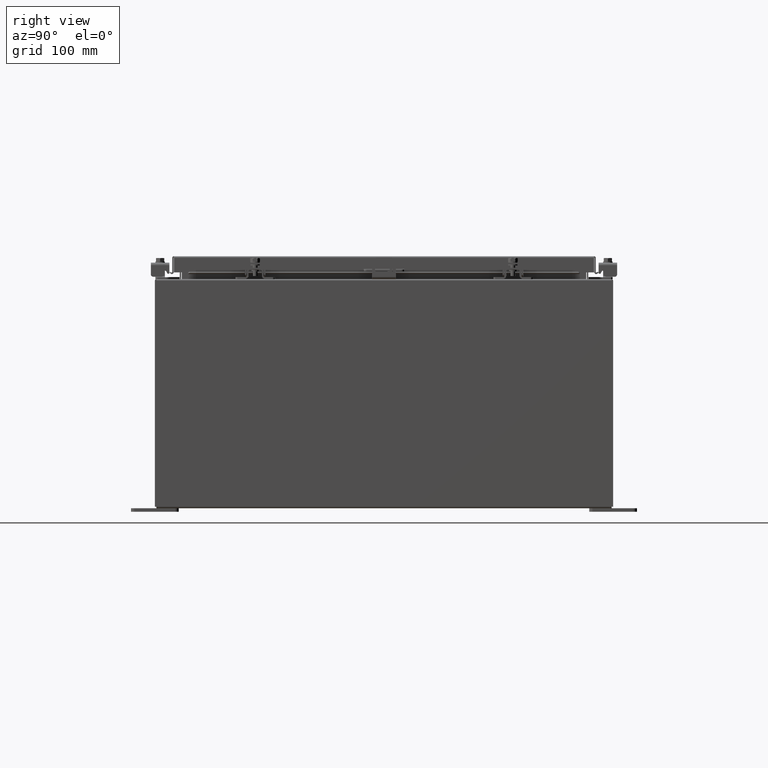
[diagram: clean part render]
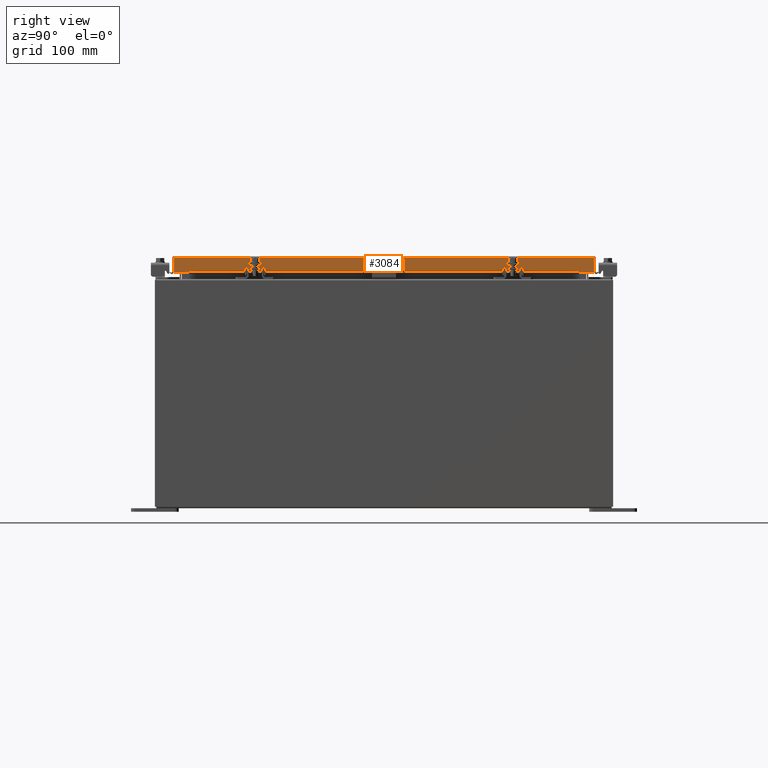
[diagram: same view with one face highlighted and labeled with its STEP entity id]
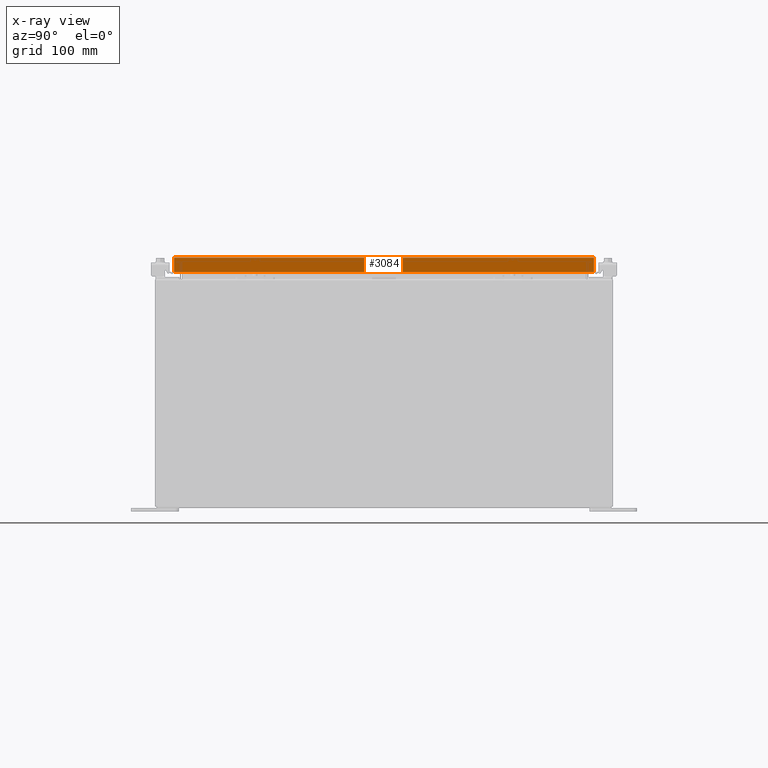
[diagram: x-ray of the same camera — body ghosted, the highlighted face saturated]
A machine part, right view. The second image highlights one B-rep face of the part: STEP entity #3084.
The next image is the same camera in x-ray: the body ghosted, the highlighted face saturated — about 0% of this face is hidden behind the body in this view.
In plain terms, the highlighted planar face has unit normal (1, 0, 0).
Its self-contained STEP definition (entity closure, byte-faithful):
#51 = CARTESIAN_POINT ( 'NONE',  ( 11.07799999999999600, -11.00515786437626900, -0.07469999999999978000 ) ) ;
#1166 = DIRECTION ( 'NONE',  ( 0.0000000000000000000, -1.000000000000000000, 0.0000000000000000000 ) ) ;
#1330 = LINE ( 'NONE', #16166, #27173 ) ;
#1842 = CARTESIAN_POINT ( 'NONE',  ( 11.07799999999999400, 10.25515786437627200, -0.8500000000000010900 ) ) ;
#2362 = VERTEX_POINT ( 'NONE', #3833 ) ;
#2715 = VECTOR ( 'NONE', #11217, 39.37007874015748100 ) ;
#3084 = ADVANCED_FACE ( 'NONE', ( #28883 ), #7206, .T. ) ;
#3503 = DIRECTION ( 'NONE',  ( -2.818880942772360100E-015, -6.982962677686267500E-015, 1.000000000000000000 ) ) ;
#3833 = CARTESIAN_POINT ( 'NONE',  ( 11.07799999999999600, -11.00515786437626900, -0.08770000000000007000 ) ) ;
#4158 = CARTESIAN_POINT ( 'NONE',  ( 11.07799999999999600, 11.00515786437626900, -0.08770000000000007000 ) ) ;
#5269 = LINE ( 'NONE', #51, #18517 ) ;
#6031 = VECTOR ( 'NONE', #19995, 39.37007874015748100 ) ;
#6776 = ORIENTED_EDGE ( 'NONE', *, *, #18807, .T. ) ;
#6986 = DIRECTION ( 'NONE',  ( 0.0000000000000000000, -1.000000000000000000, 0.0000000000000000000 ) ) ;
#7123 = EDGE_CURVE ( 'NONE', #8443, #2362, #5269, .T. ) ;
#7206 = PLANE ( 'NONE',  #28743 ) ;
#7214 = EDGE_CURVE ( 'NONE', #17424, #17743, #22047, .T. ) ;
#7255 = CARTESIAN_POINT ( 'NONE',  ( 11.07799999999999400, -10.25515786437626400, -0.8500000000000010900 ) ) ;
#8443 = VERTEX_POINT ( 'NONE', #24950 ) ;
#11217 = DIRECTION ( 'NONE',  ( 0.0000000000000000000, -1.000000000000000000, 0.0000000000000000000 ) ) ;
#11354 = ORIENTED_EDGE ( 'NONE', *, *, #7123, .F. ) ;
#11901 = VERTEX_POINT ( 'NONE', #4158 ) ;
#12045 = EDGE_CURVE ( 'NONE', #28043, #17424, #22680, .T. ) ;
#14345 = DIRECTION ( 'NONE',  ( 2.818880942772360100E-015, 0.0000000000000000000, -1.000000000000000000 ) ) ;
#16166 = CARTESIAN_POINT ( 'NONE',  ( 11.07799999999999800, -11.09400000000000100, -0.8499999999999996400 ) ) ;
#16950 = VECTOR ( 'NONE', #6986, 39.37007874015748100 ) ;
#17424 = VERTEX_POINT ( 'NONE', #31497 ) ;
#17556 = CARTESIAN_POINT ( 'NONE',  ( 11.07799999999999800, 11.00515786437627200, -0.8499999999999996400 ) ) ;
#17743 = VERTEX_POINT ( 'NONE', #7255 ) ;
#17940 = ORIENTED_EDGE ( 'NONE', *, *, #7214, .F. ) ;
#18517 = VECTOR ( 'NONE', #29129, 39.37007874015748100 ) ;
#18807 = EDGE_CURVE ( 'NONE', #28043, #11901, #25530, .T. ) ;
#18878 = CARTESIAN_POINT ( 'NONE',  ( 11.07799999999999600, 0.0000000000000000000, -0.08770000000000007000 ) ) ;
#19018 = EDGE_CURVE ( 'NONE', #11901, #2362, #31789, .T. ) ;
#19642 = CARTESIAN_POINT ( 'NONE',  ( 11.07799999999999600, 11.00515786437626700, 1.083369833690287600E-013 ) ) ;
#19995 = DIRECTION ( 'NONE',  ( 0.0000000000000000000, -1.000000000000000000, 0.0000000000000000000 ) ) ;
#20473 = VECTOR ( 'NONE', #3503, 39.37007874015748100 ) ;
#22047 = LINE ( 'NONE', #1842, #16950 ) ;
#22312 = DIRECTION ( 'NONE',  ( 1.000000000000000000, 0.0000000000000000000, 2.818880942772360100E-015 ) ) ;
#22594 = ORIENTED_EDGE ( 'NONE', *, *, #19018, .T. ) ;
#22644 = ORIENTED_EDGE ( 'NONE', *, *, #12045, .F. ) ;
#22680 = LINE ( 'NONE', #30492, #2715 ) ;
#23503 = CARTESIAN_POINT ( 'NONE',  ( 11.07799999999999600, 0.0000000000000000000, 3.148837674004377800E-014 ) ) ;
#24477 = EDGE_LOOP ( 'NONE', ( #11354, #28394, #17940, #22644, #6776, #22594 ) ) ;
#24950 = CARTESIAN_POINT ( 'NONE',  ( 11.07799999999999800, -11.00515786437626400, -0.8499999999999996400 ) ) ;
#25530 = LINE ( 'NONE', #19642, #20473 ) ;
#27173 = VECTOR ( 'NONE', #1166, 39.37007874015748100 ) ;
#28043 = VERTEX_POINT ( 'NONE', #17556 ) ;
#28394 = ORIENTED_EDGE ( 'NONE', *, *, #29677, .F. ) ;
#28743 = AXIS2_PLACEMENT_3D ( 'NONE', #23503, #22312, #14345 ) ;
#28883 = FACE_OUTER_BOUND ( 'NONE', #24477, .T. ) ;
#29129 = DIRECTION ( 'NONE',  ( -2.818880942772360100E-015, -6.982962677686267500E-015, 1.000000000000000000 ) ) ;
#29677 = EDGE_CURVE ( 'NONE', #17743, #8443, #1330, .T. ) ;
#30492 = CARTESIAN_POINT ( 'NONE',  ( 11.07799999999999800, -11.09400000000000100, -0.8499999999999996400 ) ) ;
#31497 = CARTESIAN_POINT ( 'NONE',  ( 11.07799999999999400, 10.25515786437626900, -0.8500000000000010900 ) ) ;
#31789 = LINE ( 'NONE', #18878, #6031 ) ;